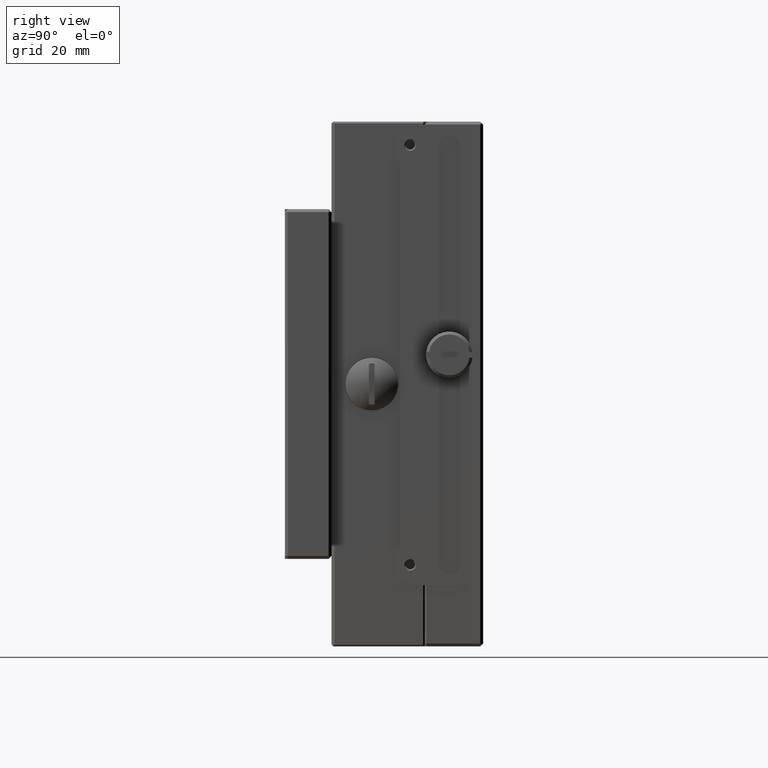
[diagram: clean part render]
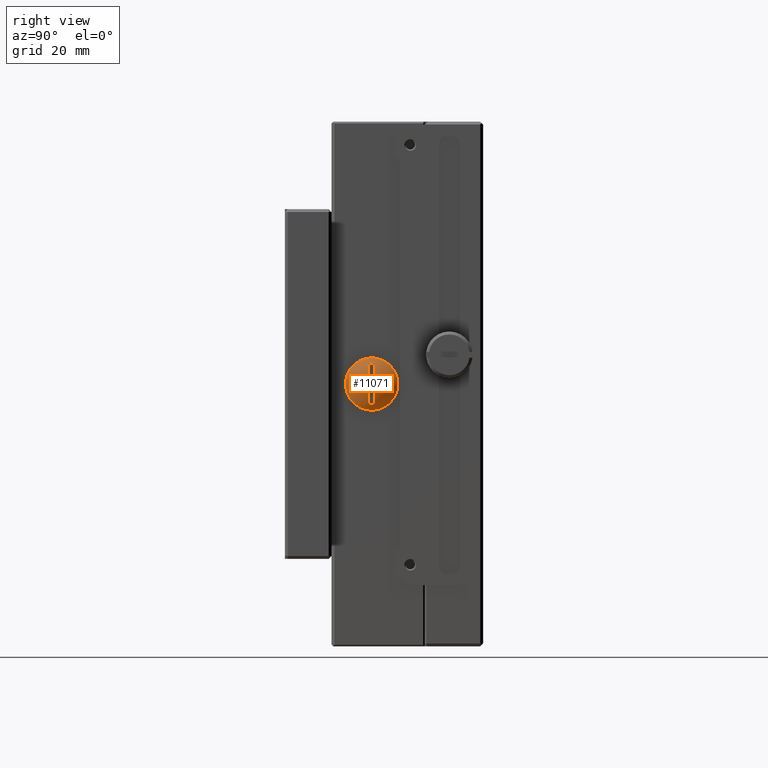
[diagram: same view with one face highlighted and labeled with its STEP entity id]
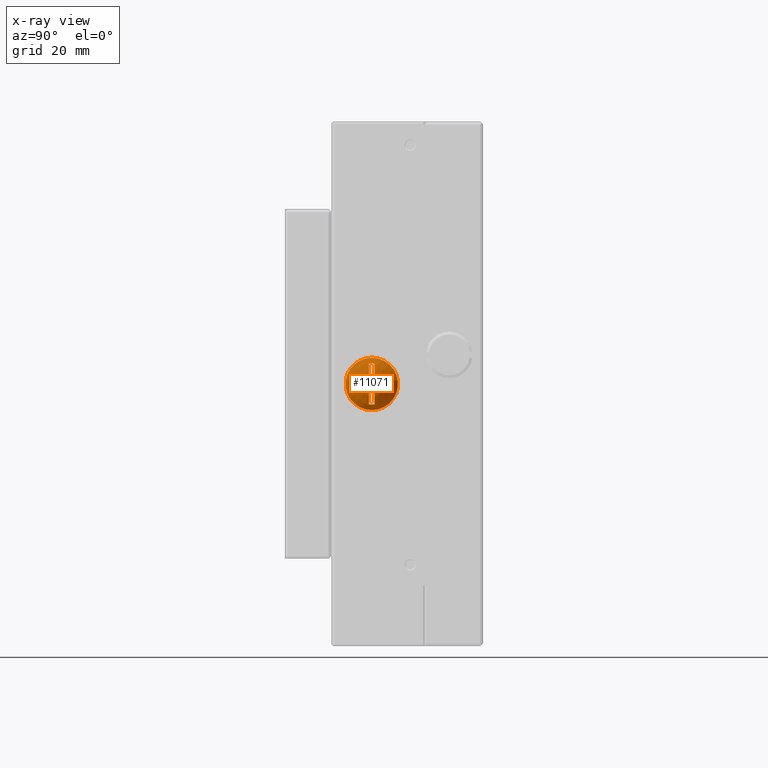
[diagram: x-ray of the same camera — body ghosted, the highlighted face saturated]
A machine part, right view. The second image highlights one B-rep face of the part: STEP entity #11071.
The next image is the same camera in x-ray: the body ghosted, the highlighted face saturated — about 0% of this face is hidden behind the body in this view.
In plain terms, the highlighted toroidal blend (fillet) surface has major radius 0.0001 mm and minor (blend) radius 6.8 mm.
Its self-contained STEP definition (entity closure, byte-faithful):
#29 = CARTESIAN_POINT ( 'NONE',  ( 22.33307815587641443, 7.400201897401417206, 1.387171018839665981 ) ) ;
#30 = CARTESIAN_POINT ( 'NONE',  ( 22.05300709519582725, 6.399658901637858222, -2.363864074223577916 ) ) ;
#95 = B_SPLINE_CURVE_WITH_KNOTS ( 'NONE', 3,
 ( #3745, #10223, #1261, #3820 ),
 .UNSPECIFIED., .F., .F.,
 ( 4, 4 ),
 ( 0.000000000000000000, 1.000000000000000000 ),
 .UNSPECIFIED. ) ;
#103 = CARTESIAN_POINT ( 'NONE',  ( 21.80567978435534471, 7.400100104684728564, 2.941696898522908388 ) ) ;
#104 = CARTESIAN_POINT ( 'NONE',  ( 22.22361885352713884, 6.399787343123959360, -1.834549694555051680 ) ) ;
#183 = CARTESIAN_POINT ( 'NONE',  ( 22.22639131674565860, 6.399788288457978425, -1.824657814371964282 ) ) ;
#334 = B_SPLINE_CURVE_WITH_KNOTS ( 'NONE', 3,
 ( #6442, #10302, #8732, #7673, #16201, #13979, #11357, #9052, #1420, #9976, #12596, #10221, #7751, #30, #15290, #11429, #1499, #13742, #4061, #1348, #104, #14968, #183, #14055, #5059, #3817, #6364, #15213, #3986, #8807, #8976, #2823, #6194, #2492, #7511, #14144, #12999, #6615, #1840, #6931, #1590, #4309, #6859, #15368, #4233, #4142, #5459, #10456, #9304, #11763, #10616, #603, #15610, #6689, #9229, #8081, #12925, #15463, #2999, #2920, #4386, #674, #7924, #14299, #14227, #13086, #1920, #6772, #11847, #3077, #7997, #5619, #9138, #1753, #11674, #9386, #525, #14378, #12840, #8172, #3162, #10374, #11917, #13165, #4475, #5551, #10546, #5700, #15536, #432, #1667, #11595, #10689, #15700, #9477, #14463, #7834, #351, #5380, #13406, #997, #3556, #8404, #3243, #11093, #4711, #13239, #4551, #9795, #13558, #12246, #4790, #9721, #2159, #9546, #14711, #5865, #7101 ),
 .UNSPECIFIED., .F., .F.,
 ( 4, 2, 2, 1, 1, 1, 2, 2, 2, 2, 1, 1, 1, 2, 2, 2, 1, 1, 1, 2, 2, 2, 2, 1, 1, 2, 2, 2, 2, 1, 1, 2, 2, 2, 2, 2, 2, 2, 2, 2, 2, 2, 1, 2, 2, 2, 2, 1, 1, 2, 2, 2, 2, 1, 1, 2, 2, 2, 1, 1, 1, 2, 2, 2, 2, 1, 1, 1, 2, 2, 4 ),
 ( 0.000000000000000000, 0.06250000000001250389, 0.09375000000001884604, 0.1093750000000219130, 0.1171875000000237727, 0.1210937500000250355, 0.1230468750000256600, 0.1250000000000262845, 0.1875000000000300315, 0.2187500000000319467, 0.2343750000000327238, 0.2421875000000329181, 0.2460937500000329459, 0.2480468750000330014, 0.2500000000000330291, 0.2812500000000340283, 0.2968750000000343059, 0.3046875000000344724, 0.3085937500000347500, 0.3105468750000349165, 0.3125000000000350830, 0.3437500000000369149, 0.3593750000000379696, 0.3671875000000384692, 0.3710937500000388578, 0.3730468750000389133, 0.3750000000000389688, 0.4062500000000401346, 0.4218750000000406897, 0.4296875000000410227, 0.4335937500000411893, 0.4355468750000412448, 0.4375000000000413003, 0.4531250000000420775, 0.4609375000000424660, 0.4687500000000428546, 0.5000000000000446310, 0.5156250000000456302, 0.5234375000000460743, 0.5312500000000465183, 0.5468750000000474065, 0.5546875000000479616, 0.5585937500000481837, 0.5605468750000481837, 0.5625000000000482947, 0.5937500000000499600, 0.6093750000000508482, 0.6171875000000512923, 0.6210937500000515143, 0.6230468750000516254, 0.6250000000000516254, 0.6562500000000506262, 0.6718750000000499600, 0.6796875000000495159, 0.6835937500000491829, 0.6855468750000489608, 0.6875000000000488498, 0.7187500000000452971, 0.7343750000000437428, 0.7421875000000429656, 0.7460937500000427436, 0.7480468750000426326, 0.7500000000000424105, 0.8125000000000305311, 0.8437500000000246470, 0.8593750000000217604, 0.8671875000000204281, 0.8710937500000197620, 0.8730468750000193179, 0.8750000000000189848, 1.000000000000000000 ),
 .UNSPECIFIED. ) ;
#350 = CARTESIAN_POINT ( 'NONE',  ( 22.29839197174012710, 7.400250990430073728, 1.544343358635752894 ) ) ;
#351 = CARTESIAN_POINT ( 'NONE',  ( 22.28004171971772607, 6.399933303560056963, 1.620863572671887853 ) ) ;
#430 = CARTESIAN_POINT ( 'NONE',  ( 22.26573108533036915, 7.400058212035997229, -1.678376559853743233 ) ) ;
#432 = CARTESIAN_POINT ( 'NONE',  ( 22.35696015044801754, 6.399935334334974080, 1.267724963724429887 ) ) ;
#523 = CARTESIAN_POINT ( 'NONE',  ( 22.46385299610491870, 7.400055806559308280, 0.4154189333448183308 ) ) ;
#525 = CARTESIAN_POINT ( 'NONE',  ( 22.45069806557370740, 6.399616592541454985, 0.5952566050842499346 ) ) ;
#602 = CARTESIAN_POINT ( 'NONE',  ( 22.47305622597992780, 7.399986879461205369, -0.2157641051931167009 ) ) ;
#603 = CARTESIAN_POINT ( 'NONE',  ( 22.46071989317424311, 6.399932672714440329, -0.4618345125646443061 ) ) ;
#673 = CARTESIAN_POINT ( 'NONE',  ( 22.46900122905168828, 7.400053668689976938, 0.3185824914298619470 ) ) ;
#674 = CARTESIAN_POINT ( 'NONE',  ( 22.47611711173144755, 6.400214583356109266, 0.07967442113901453127 ) ) ;
#757 = CARTESIAN_POINT ( 'NONE',  ( 22.47513456499765638, 7.399794651330410922, -0.1363633692464442382 ) ) ;
#841 = CARTESIAN_POINT ( 'NONE',  ( 22.23055982455986523, 7.400033428446132433, -1.809718132050493367 ) ) ;
#997 = CARTESIAN_POINT ( 'NONE',  ( 22.23764874318193208, 6.399964634231291249, 1.783964547303964920 ) ) ;
#1022 = CARTESIAN_POINT ( 'NONE',  ( 15.69486298685839820, 6.900000000000000355, 0.000000000000000000 ) ) ;
#1050 = EDGE_CURVE ( 'NONE', #1643, #1643, #12157, .T. ) ;
#1155 = CARTESIAN_POINT ( 'NONE',  ( 21.92316562531632229, 7.400027219231028575, -2.683066021481371966 ) ) ;
#1261 = CARTESIAN_POINT ( 'NONE',  ( 21.50000000000000000, 7.066666666666666430, -3.553416007881793792 ) ) ;
#1347 = CARTESIAN_POINT ( 'NONE',  ( 22.35452942779154384, 7.400190563735217886, 1.283317427923899690 ) ) ;
#1348 = CARTESIAN_POINT ( 'NONE',  ( 22.22041195733503827, 6.399785610483753828, -1.845949960777715670 ) ) ;
#1414 = CARTESIAN_POINT ( 'NONE',  ( 21.49999999999881339, 7.400000000000279243, 3.505876782460726204 ) ) ;
#1419 = CARTESIAN_POINT ( 'NONE',  ( 21.59005590640868277, 7.400000000000002132, 3.356754800198748168 ) ) ;
#1420 = CARTESIAN_POINT ( 'NONE',  ( 21.90907998793575118, 6.399894028482858488, -2.715536272180951727 ) ) ;
#1498 = CARTESIAN_POINT ( 'NONE',  ( 22.32418435405788060, 7.400213886072147140, 1.429247893669269631 ) ) ;
#1499 = CARTESIAN_POINT ( 'NONE',  ( 22.18219359586393935, 6.399716788250655597, -1.976341527254786623 ) ) ;
#1590 = CARTESIAN_POINT ( 'NONE',  ( 22.41327423976962052, 6.399853644269390962, -0.9236093840642969344 ) ) ;
#1643 = VERTEX_POINT ( 'NONE', #9024 ) ;
#1667 = CARTESIAN_POINT ( 'NONE',  ( 22.35101924098856330, 6.399958579010251114, 1.298714101278896749 ) ) ;
#1751 = CARTESIAN_POINT ( 'NONE',  ( 22.46131568764787190, 7.399981497221966187, -0.4531142984016563457 ) ) ;
#1753 = CARTESIAN_POINT ( 'NONE',  ( 22.46131568764743136, 6.400018502778003437, 0.4531142984082123792 ) ) ;
#1838 = CARTESIAN_POINT ( 'NONE',  ( 22.45997776766224518, 7.400079377860931729, 0.4725586109385250810 ) ) ;
#1840 = CARTESIAN_POINT ( 'NONE',  ( 22.41044942848894905, 6.399842507484700072, -0.9439802842628282065 ) ) ;
#1919 = CARTESIAN_POINT ( 'NONE',  ( 22.47119721844731544, 7.399979710184150683, -0.2696942824083002344 ) ) ;
#1920 = CARTESIAN_POINT ( 'NONE',  ( 22.47119721844703122, 6.400020289815594232, 0.2696942824147375295 ) ) ;
#1990 = CARTESIAN_POINT ( 'NONE',  ( 22.35101924099008741, 7.400041420990074670, -1.298714101270915133 ) ) ;
#2071 = CARTESIAN_POINT ( 'NONE',  ( 22.28004171971934610, 7.400066696439195013, -1.620863572665531160 ) ) ;
#2099 = CARTESIAN_POINT ( 'NONE',  ( 21.50000000000000000, 6.733333333333805903, 3.553416007885040084 ) ) ;
#2158 = CARTESIAN_POINT ( 'NONE',  ( 22.15365915865118396, 7.400212764690906830, -2.073094861533374633 ) ) ;
#2159 = CARTESIAN_POINT ( 'NONE',  ( 21.92602083048795691, 6.399972273652262622, 2.676430814329625818 ) ) ;
#2227 = CARTESIAN_POINT ( 'NONE',  ( 22.07844262235034094, 7.400212041077532277, -2.290436123057868478 ) ) ;
#2480 = CARTESIAN_POINT ( 'NONE',  ( 20.79299999999999926, 6.900000000000000355, 0.000000000000000000 ) ) ;
#2492 = CARTESIAN_POINT ( 'NONE',  ( 22.36959048988016008, 6.399692266090434067, -1.201630330378164802 ) ) ;
#2822 = CARTESIAN_POINT ( 'NONE',  ( 22.19689815927429066, 7.400249813502749241, 1.927596039222988278 ) ) ;
#2823 = CARTESIAN_POINT ( 'NONE',  ( 22.33538940281828289, 6.399800126515670762, -1.376068940143004404 ) ) ;
#2919 = CARTESIAN_POINT ( 'NONE',  ( 21.66895830916332955, 7.400062697171822634, 3.213151077073666873 ) ) ;
#2920 = CARTESIAN_POINT ( 'NONE',  ( 22.47650385125724881, 6.399985069869092769, -0.07363991872915982839 ) ) ;
#2998 = CARTESIAN_POINT ( 'NONE',  ( 22.40253109032956758, 7.400212329584194393, 0.9987685327265564128 ) ) ;
#2999 = CARTESIAN_POINT ( 'NONE',  ( 22.47536404913416774, 6.399990605568740776, -0.1461952928048929345 ) ) ;
#3075 = CARTESIAN_POINT ( 'NONE',  ( 22.40493093940801117, 7.399993538995934372, -0.9845863583042792078 ) ) ;
#3077 = CARTESIAN_POINT ( 'NONE',  ( 22.46567140508471283, 6.400003815096015458, 0.3830019123258130431 ) ) ;
#3160 = CARTESIAN_POINT ( 'NONE',  ( 22.42669046386621901, 7.400126552819478398, 0.8251713636609342428 ) ) ;
#3162 = CARTESIAN_POINT ( 'NONE',  ( 22.42388567277299671, 6.399908124517385666, 0.8433371499916140213 ) ) ;
#3242 = CARTESIAN_POINT ( 'NONE',  ( 22.42776004433091686, 7.400177555692986076, -0.8115226973235223351 ) ) ;
#3243 = CARTESIAN_POINT ( 'NONE',  ( 22.22872245867483088, 6.399966684253523219, 1.816337333965612366 ) ) ;
#3317 = CARTESIAN_POINT ( 'NONE',  ( 22.30687302080831103, 7.400061205889048033, -1.509133506881774389 ) ) ;
#3399 = CARTESIAN_POINT ( 'NONE',  ( 22.05097105190309748, 7.400178317723340449, -2.365857155101808385 ) ) ;
#3411 = AXIS2_PLACEMENT_3D ( 'NONE', #2480, #9124, #10363 ) ;
#3556 = CARTESIAN_POINT ( 'NONE',  ( 22.23340875666908900, 6.399965989242048181, 1.799396924812402210 ) ) ;
#3745 = CARTESIAN_POINT ( 'NONE',  ( 21.50000000000001066, 6.399999999999999467, -3.505876782458777541 ) ) ;
#3748 = ORIENTED_EDGE ( 'NONE', *, *, #10273, .T. ) ;
#3817 = CARTESIAN_POINT ( 'NONE',  ( 22.29839197174288046, 6.399749009571139347, -1.544343358624380880 ) ) ;
#3820 = CARTESIAN_POINT ( 'NONE',  ( 21.50000000000001066, 7.400000000000002132, -3.505876782458777541 ) ) ;
#3930 = AXIS2_PLACEMENT_3D ( 'NONE', #1022, #8337, #16051 ) ;
#3985 = CARTESIAN_POINT ( 'NONE',  ( 21.91406740747417814, 7.400107505540860053, 2.704074303502796095 ) ) ;
#3986 = CARTESIAN_POINT ( 'NONE',  ( 22.33045960076165670, 6.399795299232716950, -1.399682588933811589 ) ) ;
#4060 = CARTESIAN_POINT ( 'NONE',  ( 21.77325705932664945, 7.400096250942284293, 3.008252170204655851 ) ) ;
#4061 = CARTESIAN_POINT ( 'NONE',  ( 22.21277864620941500, 6.399777770074135397, -1.872814594082293782 ) ) ;
#4142 = CARTESIAN_POINT ( 'NONE',  ( 22.45074720686882230, 6.399571311069638391, -0.5907514110673763863 ) ) ;
#4232 = CARTESIAN_POINT ( 'NONE',  ( 22.45913210662582671, 7.400098468940016438, 0.4845966566432513556 ) ) ;
#4233 = CARTESIAN_POINT ( 'NONE',  ( 22.44747516287187850, 6.399481366960834805, -0.6271848023019253038 ) ) ;
#4308 = CARTESIAN_POINT ( 'NONE',  ( 22.47372133602500099, 7.399931464631435141, -0.1940121209580700778 ) ) ;
#4309 = CARTESIAN_POINT ( 'NONE',  ( 22.41360549685979464, 6.399854733714663624, -0.9212054400561768830 ) ) ;
#4385 = CARTESIAN_POINT ( 'NONE',  ( 22.47650385125716355, 7.400014930131226798, 0.07363991873309716496 ) ) ;
#4386 = CARTESIAN_POINT ( 'NONE',  ( 22.47644245060026691, 6.400007465065454149, 0.04235081003943125255 ) ) ;
#4465 = B_SPLINE_CURVE_WITH_KNOTS ( 'NONE', 3,
 ( #13903, #1419, #2919, #4060, #103, #10051, #7749, #12668, #15367, #3985, #9050, #5379, #7923, #12745, #14054, #11356, #14142, #2822, #6363, #12595, #6440, #10372, #8806, #12838, #11594, #350, #15126, #1498, #6518, #29, #5058, #13822, #1347, #5128, #10129, #6858, #2998, #15461, #14226, #13164, #5458, #7996, #3160, #10454, #13238, #10615, #8315, #14376, #4232, #1838, #4474, #7012, #523, #15785, #673, #11846, #15698, #15609, #12997, #4385, #13084, #9385, #757, #10545, #4308, #602, #1919, #5618, #11761, #15535, #9545, #14462, #13312, #1751, #6771, #8171, #9228, #5699, #5550, #3242, #11916, #11672, #9303, #8080, #14298, #3075, #9476, #6930, #10688, #8241, #1990, #11995, #5787, #10780, #4550, #14535, #3317, #2071, #430, #9720, #9953, #5935, #841, #9631, #14619, #2158, #2227, #3399, #10853, #8403, #8553, #5864, #13405, #13648, #1155, #16097, #8634, #13557 ),
 .UNSPECIFIED., .F., .F.,
 ( 4, 2, 2, 1, 1, 1, 2, 2, 2, 2, 1, 1, 1, 2, 2, 2, 1, 1, 1, 2, 2, 2, 2, 1, 1, 2, 2, 2, 2, 1, 1, 2, 2, 2, 2, 2, 2, 2, 2, 2, 2, 2, 1, 2, 2, 2, 2, 1, 1, 2, 2, 2, 2, 1, 1, 2, 2, 2, 1, 1, 1, 2, 2, 2, 2, 1, 1, 1, 2, 2, 4 ),
 ( 0.000000000000000000, 0.06250000000000717482, 0.09375000000001108835, 0.1093750000000130312, 0.1171875000000142247, 0.1210937500000150713, 0.1230468750000150713, 0.1250000000000150713, 0.1875000000000205114, 0.2187500000000230094, 0.2343750000000241474, 0.2421875000000245082, 0.2460937500000247302, 0.2480468750000250633, 0.2500000000000253686, 0.2812500000000322520, 0.2968750000000356382, 0.3046875000000373035, 0.3085937500000379696, 0.3105468750000383027, 0.3125000000000386358, 0.3437500000000408562, 0.3593750000000417999, 0.3671875000000422995, 0.3710937500000425215, 0.3730468750000425215, 0.3750000000000425215, 0.4062500000000435763, 0.4218750000000440203, 0.4296875000000441869, 0.4335937500000442979, 0.4355468750000443534, 0.4375000000000444089, 0.4531250000000449640, 0.4609375000000452416, 0.4687500000000455191, 0.5000000000000467404, 0.5156250000000472955, 0.5234375000000476286, 0.5312500000000479616, 0.5468750000000486278, 0.5546875000000490719, 0.5585937500000492939, 0.5605468750000494049, 0.5625000000000495159, 0.5937500000000514033, 0.6093750000000522915, 0.6171875000000528466, 0.6210937500000530687, 0.6230468750000531797, 0.6250000000000532907, 0.6562500000000555112, 0.6718750000000565104, 0.6796875000000569544, 0.6835937500000570655, 0.6855468750000571765, 0.6875000000000572875, 0.7187500000000589528, 0.7343750000000599520, 0.7421875000000602851, 0.7460937500000603961, 0.7480468750000602851, 0.7500000000000601741, 0.8125000000000448530, 0.8437500000000374145, 0.8593750000000334177, 0.8671875000000315303, 0.8710937500000308642, 0.8730468750000305311, 0.8750000000000301981, 1.000000000000000000 ),
 .UNSPECIFIED. ) ;
#4474 = CARTESIAN_POINT ( 'NONE',  ( 22.46053084675079603, 7.400070021017077337, 0.4645817380135854879 ) ) ;
#4475 = CARTESIAN_POINT ( 'NONE',  ( 22.41424430374753740, 6.400006962708862268, 0.9166079959731769922 ) ) ;
#4550 = CARTESIAN_POINT ( 'NONE',  ( 22.33678578485069011, 7.400015805169398497, -1.369374867906874904 ) ) ;
#4551 = CARTESIAN_POINT ( 'NONE',  ( 22.05097105190045781, 6.399821682278033386, 2.365857155109207799 ) ) ;
#4711 = CARTESIAN_POINT ( 'NONE',  ( 22.15365915864908430, 6.399787235310520295, 2.073094861540293543 ) ) ;
#4790 = CARTESIAN_POINT ( 'NONE',  ( 21.93713319461328126, 6.399968431512818690, 2.650444016507879752 ) ) ;
#5058 = CARTESIAN_POINT ( 'NONE',  ( 22.33480832271220251, 7.400200351237543828, 1.378865407429676004 ) ) ;
#5059 = CARTESIAN_POINT ( 'NONE',  ( 22.27146122319019383, 6.399746382389550625, -1.656626865490158140 ) ) ;
#5128 = CARTESIAN_POINT ( 'NONE',  ( 22.36959048987860044, 7.400307733908020325, 1.201630330387486234 ) ) ;
#5379 = CARTESIAN_POINT ( 'NONE',  ( 21.91840159086265771, 7.400108984438083404, 2.694086179322809471 ) ) ;
#5380 = CARTESIAN_POINT ( 'NONE',  ( 22.26573108532862122, 6.399941787963290274, 1.678376559860375927 ) ) ;
#5446 = VERTEX_POINT ( 'NONE', #1414 ) ;
#5458 = CARTESIAN_POINT ( 'NONE',  ( 22.41327423976896327, 7.400146355730584879, 0.9236093840690586809 ) ) ;
#5459 = CARTESIAN_POINT ( 'NONE',  ( 22.45504659455030705, 6.399738813320205999, -0.5386313367750942271 ) ) ;
#5550 = CARTESIAN_POINT ( 'NONE',  ( 22.43506409403621404, 7.400331199309236219, -0.7492047715794465379 ) ) ;
#5551 = CARTESIAN_POINT ( 'NONE',  ( 22.40493093940689917, 6.400006461004309699, 0.9845863583119413009 ) ) ;
#5618 = CARTESIAN_POINT ( 'NONE',  ( 22.46964729193208754, 7.399990616491828099, -0.3064213664934914982 ) ) ;
#5619 = CARTESIAN_POINT ( 'NONE',  ( 22.46298104120333861, 6.400013048280214001, 0.4276880077806368141 ) ) ;
#5699 = CARTESIAN_POINT ( 'NONE',  ( 22.43934139492685986, 7.400403002052675205, -0.7094103926659384163 ) ) ;
#5700 = CARTESIAN_POINT ( 'NONE',  ( 22.37530446666909612, 6.399873624394321503, 1.167614707349957648 ) ) ;
#5787 = CARTESIAN_POINT ( 'NONE',  ( 22.34037044185066634, 7.400018187546902659, -1.351873991588219859 ) ) ;
#5864 = CARTESIAN_POINT ( 'NONE',  ( 21.93713319461706135, 7.400031568487408506, -2.650444016498925137 ) ) ;
#5865 = CARTESIAN_POINT ( 'NONE',  ( 21.68070497124608664, 6.400000000000000355, 3.206650617391137104 ) ) ;
#5935 = CARTESIAN_POINT ( 'NONE',  ( 22.23340875667128813, 7.400034010757813974, -1.799396924804424147 ) ) ;
#6194 = CARTESIAN_POINT ( 'NONE',  ( 22.35452942779289742, 6.399809436263327100, -1.283317427916502274 ) ) ;
#6363 = CARTESIAN_POINT ( 'NONE',  ( 22.21277864620839892, 7.400222229925607742, 1.872814594085894901 ) ) ;
#6364 = CARTESIAN_POINT ( 'NONE',  ( 22.31095526083266734, 6.399762453114602678, -1.489861288280314833 ) ) ;
#6440 = CARTESIAN_POINT ( 'NONE',  ( 22.22361885352629329, 7.400212656875967632, 1.834549694558107014 ) ) ;
#6442 = CARTESIAN_POINT ( 'NONE',  ( 21.50000000000001066, 6.399999999999999467, -3.505876782458777541 ) ) ;
#6518 = CARTESIAN_POINT ( 'NONE',  ( 22.33045960076042036, 7.400204700767715416, 1.399682588939544114 ) ) ;
#6615 = CARTESIAN_POINT ( 'NONE',  ( 22.40632725247949963, 6.399816948707806041, -0.9730404292397010213 ) ) ;
#6689 = CARTESIAN_POINT ( 'NONE',  ( 22.46614475633634456, 6.399934336823534409, -0.3758706732761322722 ) ) ;
#6771 = CARTESIAN_POINT ( 'NONE',  ( 22.46088649285688277, 7.399980627452522164, -0.4594690547677530157 ) ) ;
#6772 = CARTESIAN_POINT ( 'NONE',  ( 22.46964729193175714, 6.400009383507842209, 0.3064213665001676024 ) ) ;
#6858 = CARTESIAN_POINT ( 'NONE',  ( 22.39456289780375542, 7.400266332113261569, 1.051317828983972857 ) ) ;
#6859 = CARTESIAN_POINT ( 'NONE',  ( 22.42669046386695086, 6.399873447180845609, -0.8251713636552506781 ) ) ;
#6930 = CARTESIAN_POINT ( 'NONE',  ( 22.37530446667048878, 7.400126375606219220, -1.167614707341809943 ) ) ;
#6931 = CARTESIAN_POINT ( 'NONE',  ( 22.41215262585094337, 6.399849805082586052, -0.9317304941237603000 ) ) ;
#7012 = CARTESIAN_POINT ( 'NONE',  ( 22.46071989317389495, 7.400067327285624330, 0.4618345125696525777 ) ) ;
#7101 = CARTESIAN_POINT ( 'NONE',  ( 21.49999999999521805, 6.400000000000000355, 3.505876782468718478 ) ) ;
#7281 = ORIENTED_EDGE ( 'NONE', *, *, #7974, .F. ) ;
#7375 = CARTESIAN_POINT ( 'NONE',  ( 21.50000000000001066, 6.399999999999999467, -3.505876782458777541 ) ) ;
#7511 = CARTESIAN_POINT ( 'NONE',  ( 22.38875004423369219, 6.399705667072663751, -1.087808908984825962 ) ) ;
#7673 = CARTESIAN_POINT ( 'NONE',  ( 21.77325705933536781, 6.399903749058513114, -3.008252170187169394 ) ) ;
#7749 = CARTESIAN_POINT ( 'NONE',  ( 21.87303913395830079, 7.400100924209381148, 2.796914231280393626 ) ) ;
#7751 = CARTESIAN_POINT ( 'NONE',  ( 21.99307182269310701, 6.399860751102043110, -2.521180790304816011 ) ) ;
#7834 = CARTESIAN_POINT ( 'NONE',  ( 22.30687302080684375, 6.399938794110311413, 1.509133506887993637 ) ) ;
#7923 = CARTESIAN_POINT ( 'NONE',  ( 21.99307182269165750, 7.400139248896681288, 2.521180790308518382 ) ) ;
#7924 = CARTESIAN_POINT ( 'NONE',  ( 22.47513456499751427, 6.400205348669729233, 0.1363633692538543662 ) ) ;
#7974 = EDGE_CURVE ( 'NONE', #8646, #12660, #95, .T. ) ;
#7996 = CARTESIAN_POINT ( 'NONE',  ( 22.41360549685921555, 7.400145266285321988, 0.9212054400604346993 ) ) ;
#7997 = CARTESIAN_POINT ( 'NONE',  ( 22.46390537871043591, 6.400009313799344568, 0.4126946972168228922 ) ) ;
#8080 = CARTESIAN_POINT ( 'NONE',  ( 22.41522727374390911, 7.399995232268343770, -0.9093795018353630910 ) ) ;
#8081 = CARTESIAN_POINT ( 'NONE',  ( 22.46985609373460946, 6.399952239299159018, -0.2998215804425497510 ) ) ;
#8171 = CARTESIAN_POINT ( 'NONE',  ( 22.45631620461891842, 7.399975709406396263, -0.5262132824025900213 ) ) ;
#8172 = CARTESIAN_POINT ( 'NONE',  ( 22.42776004433017789, 6.399822444306805025, 0.8115226973294805690 ) ) ;
#8241 = CARTESIAN_POINT ( 'NONE',  ( 22.35696015044950968, 7.400064665665432528, -1.267724963716379660 ) ) ;
#8315 = CARTESIAN_POINT ( 'NONE',  ( 22.45504659454978480, 7.400261186680459957, 0.5386313367810625641 ) ) ;
#8337 = DIRECTION ( 'NONE',  ( 1.000000000000000000, 0.000000000000000000, 0.000000000000000000 ) ) ;
#8339 = CARTESIAN_POINT ( 'NONE',  ( 21.49999999999881339, 7.400000000000279243, 3.505876782460726204 ) ) ;
#8403 = CARTESIAN_POINT ( 'NONE',  ( 21.98196129162005619, 7.400072888514755753, -2.542884582046356368 ) ) ;
#8404 = CARTESIAN_POINT ( 'NONE',  ( 22.23055982455760926, 6.399966571553799000, 1.809718132058613316 ) ) ;
#8553 = CARTESIAN_POINT ( 'NONE',  ( 21.95240565972009961, 7.400041322837124014, -2.614303684858963805 ) ) ;
#8634 = CARTESIAN_POINT ( 'NONE',  ( 21.68070497126191398, 7.400000000000004796, -3.206650617363775435 ) ) ;
#8646 = VERTEX_POINT ( 'NONE', #7375 ) ;
#8670 = ORIENTED_EDGE ( 'NONE', *, *, #1050, .F. ) ;
#8732 = CARTESIAN_POINT ( 'NONE',  ( 21.66895830917245647, 6.399937302828624830, -3.213151077056772387 ) ) ;
#8806 = CARTESIAN_POINT ( 'NONE',  ( 22.22639131674498003, 7.400211711541999193, 1.824657814374439413 ) ) ;
#8807 = CARTESIAN_POINT ( 'NONE',  ( 22.33307815587744471, 6.399798102598843741, -1.387171018834824077 ) ) ;
#8976 = CARTESIAN_POINT ( 'NONE',  ( 22.33480832271309069, 6.399799648762591886, -1.378865407425447387 ) ) ;
#9024 = CARTESIAN_POINT ( 'NONE',  ( 20.79299999999999926, 6.900000000000000355, -4.500000000000000888 ) ) ;
#9050 = CARTESIAN_POINT ( 'NONE',  ( 21.91737720418880286, 7.400108626916070520, 2.696448681113508439 ) ) ;
#9052 = CARTESIAN_POINT ( 'NONE',  ( 21.89728257945677115, 6.399896679157581758, -2.742445014706869966 ) ) ;
#9124 = DIRECTION ( 'NONE',  ( -1.000000000000000000, -0.000000000000000000, -0.000000000000000000 ) ) ;
#9138 = CARTESIAN_POINT ( 'NONE',  ( 22.46199087688972185, 6.400016559801331439, 0.4429123867634205958 ) ) ;
#9228 = CARTESIAN_POINT ( 'NONE',  ( 22.45069806557416570, 7.400383407458609675, -0.5952566050790242258 ) ) ;
#9229 = CARTESIAN_POINT ( 'NONE',  ( 22.46900122905194763, 6.399946331309527281, -0.3185824914237422867 ) ) ;
#9303 = CARTESIAN_POINT ( 'NONE',  ( 22.41672541092073700, 7.400003290161310865, -0.8982330166113222658 ) ) ;
#9304 = CARTESIAN_POINT ( 'NONE',  ( 22.45913210662623882, 6.399901531060287141, -0.4845966566378117069 ) ) ;
#9335 = B_SPLINE_CURVE_WITH_KNOTS ( 'NONE', 3,
 ( #8339, #13340, #2099, #12109 ),
 .UNSPECIFIED., .F., .F.,
 ( 4, 4 ),
 ( 0.000000000000000000, 1.000000000000000000 ),
 .UNSPECIFIED. ) ;
#9385 = CARTESIAN_POINT ( 'NONE',  ( 22.47611711173152571, 7.399785416643869240, -0.07967442113173031637 ) ) ;
#9386 = CARTESIAN_POINT ( 'NONE',  ( 22.45631620461847788, 6.400024290593814946, 0.5262132824082541571 ) ) ;
#9476 = CARTESIAN_POINT ( 'NONE',  ( 22.39444282389906959, 7.400118227619310041, -1.054341783313844649 ) ) ;
#9477 = CARTESIAN_POINT ( 'NONE',  ( 22.33678578484909139, 6.399984194830630635, 1.369374867914660454 ) ) ;
#9545 = CARTESIAN_POINT ( 'NONE',  ( 22.46390537871086579, 7.399990686200501600, -0.4126946972100810074 ) ) ;
#9546 = CARTESIAN_POINT ( 'NONE',  ( 21.92316562531247826, 6.399972780769000558, 2.683066021490295494 ) ) ;
#9631 = CARTESIAN_POINT ( 'NONE',  ( 22.22872245867714369, 7.400033315746458840, -1.816337333957312561 ) ) ;
#9687 = EDGE_LOOP ( 'NONE', ( #8670 ) ) ;
#9720 = CARTESIAN_POINT ( 'NONE',  ( 22.24731081901246554, 7.400041171632302905, -1.748302814537771255 ) ) ;
#9721 = CARTESIAN_POINT ( 'NONE',  ( 21.93048023395152057, 6.399970978601158933, 2.666023997143920354 ) ) ;
#9795 = CARTESIAN_POINT ( 'NONE',  ( 22.00565044891781241, 6.399889741069644700, 2.483177875341882945 ) ) ;
#9953 = CARTESIAN_POINT ( 'NONE',  ( 22.23764874318406015, 7.400035365768460771, -1.783964547296191361 ) ) ;
#9976 = CARTESIAN_POINT ( 'NONE',  ( 21.91406740747536475, 6.399892494459254344, -2.704074303500087151 ) ) ;
#10051 = CARTESIAN_POINT ( 'NONE',  ( 21.85111867570460120, 7.400101241937902863, 2.844702421489227806 ) ) ;
#10129 = CARTESIAN_POINT ( 'NONE',  ( 22.38875004423224624, 7.400294332926249830, 1.087808908994281731 ) ) ;
#10221 = CARTESIAN_POINT ( 'NONE',  ( 21.91840159086320838, 6.399891015561958163, -2.694086179321540708 ) ) ;
#10223 = CARTESIAN_POINT ( 'NONE',  ( 21.50000000000000000, 6.733333333333332504, -3.553416007881793792 ) ) ;
#10273 = EDGE_CURVE ( 'NONE', #8646, #14271, #334, .T. ) ;
#10302 = CARTESIAN_POINT ( 'NONE',  ( 21.59005590641526595, 6.399999999999997691, -3.356754800187846222 ) ) ;
#10363 = DIRECTION ( 'NONE',  ( 0.000000000000000000, 0.000000000000000000, -1.000000000000000000 ) ) ;
#10372 = CARTESIAN_POINT ( 'NONE',  ( 22.22574258315367146, 7.400211904819482989, 1.826974705330379756 ) ) ;
#10374 = CARTESIAN_POINT ( 'NONE',  ( 22.41894017124960925, 6.399979142275140198, 0.8815940999212827922 ) ) ;
#10454 = CARTESIAN_POINT ( 'NONE',  ( 22.43617958424550451, 7.400549574290945287, 0.7417474659101712664 ) ) ;
#10456 = CARTESIAN_POINT ( 'NONE',  ( 22.45704378652031608, 6.399828320256754743, -0.5132021948673750611 ) ) ;
#10545 = CARTESIAN_POINT ( 'NONE',  ( 22.47472389889487587, 7.399834780369900500, -0.1553738730447731531 ) ) ;
#10546 = CARTESIAN_POINT ( 'NONE',  ( 22.39444282389785101, 6.399881772381148970, 1.054341783321838699 ) ) ;
#10615 = CARTESIAN_POINT ( 'NONE',  ( 22.45074720686822189, 7.400428688931205201, 0.5907514110736904467 ) ) ;
#10616 = CARTESIAN_POINT ( 'NONE',  ( 22.46053084675115841, 6.399929978983021073, -0.4645817380083945847 ) ) ;
#10626 = CARTESIAN_POINT ( 'NONE',  ( 21.50000000000001066, 7.400000000000002132, -3.505876782458777541 ) ) ;
#10688 = CARTESIAN_POINT ( 'NONE',  ( 22.36835559235029081, 7.400106535380352568, -1.206808770120333163 ) ) ;
#10689 = CARTESIAN_POINT ( 'NONE',  ( 22.34037044184907828, 6.399981812453212626, 1.351873991596026281 ) ) ;
#10780 = CARTESIAN_POINT ( 'NONE',  ( 22.33817137211996950, 7.400016236824117577, -1.362641009175387774 ) ) ;
#10853 = CARTESIAN_POINT ( 'NONE',  ( 22.00565044892084643, 7.400110258931376528, -2.483177875333947515 ) ) ;
#11071 = ADVANCED_FACE ( 'NONE', ( #12267, #12357 ), #13102, .T. ) ;
#11093 = CARTESIAN_POINT ( 'NONE',  ( 22.19423400248170353, 6.399965109478425340, 1.940133042103364236 ) ) ;
#11356 = CARTESIAN_POINT ( 'NONE',  ( 22.15121501635390899, 7.400342162983655214, 2.076176175178183314 ) ) ;
#11357 = CARTESIAN_POINT ( 'NONE',  ( 21.87303913396277011, 6.399899075791237735, -2.796914231270593021 ) ) ;
#11429 = CARTESIAN_POINT ( 'NONE',  ( 22.15121501635552903, 6.399657837015245931, -2.076176175172880889 ) ) ;
#11594 = CARTESIAN_POINT ( 'NONE',  ( 22.27146122318730903, 7.400253617611411094, 1.656626865501358292 ) ) ;
#11595 = CARTESIAN_POINT ( 'NONE',  ( 22.34363516326299504, 6.399977363411109010, 1.335788683297677304 ) ) ;
#11672 = CARTESIAN_POINT ( 'NONE',  ( 22.41894017125049388, 7.400020857724748602, -0.8815940999146318902 ) ) ;
#11674 = CARTESIAN_POINT ( 'NONE',  ( 22.46088649285643513, 6.400019372547471441, 0.4594690547742902864 ) ) ;
#11761 = CARTESIAN_POINT ( 'NONE',  ( 22.46673866405563302, 7.399996839604546572, -0.3635995598150091324 ) ) ;
#11763 = CARTESIAN_POINT ( 'NONE',  ( 22.45997776766263243, 6.399920622139251059, -0.4725586109332340912 ) ) ;
#11846 = CARTESIAN_POINT ( 'NONE',  ( 22.46985609373436432, 7.400047760700418920, 0.2998215804486254465 ) ) ;
#11847 = CARTESIAN_POINT ( 'NONE',  ( 22.46673866405524933, 6.400003160395177026, 0.3635995598218124680 ) ) ;
#11916 = CARTESIAN_POINT ( 'NONE',  ( 22.42388567277379607, 7.400091875482427639, -0.8433371499853802300 ) ) ;
#11917 = CARTESIAN_POINT ( 'NONE',  ( 22.41672541091980619, 6.399996709838620568, 0.8982330166181693443 ) ) ;
#11995 = CARTESIAN_POINT ( 'NONE',  ( 22.34363516326455112, 7.400022636589073777, -1.335788683289814482 ) ) ;
#12109 = CARTESIAN_POINT ( 'NONE',  ( 21.49999999999521805, 6.400000000000000355, 3.505876782468718478 ) ) ;
#12157 = CIRCLE ( 'NONE', #3411, 4.500000000000000888 ) ;
#12246 = CARTESIAN_POINT ( 'NONE',  ( 21.95240565971649360, 6.399958677163305687, 2.614303684867675504 ) ) ;
#12267 = FACE_OUTER_BOUND ( 'NONE', #15103, .T. ) ;
#12357 = FACE_OUTER_BOUND ( 'NONE', #9687, .T. ) ;
#12595 = CARTESIAN_POINT ( 'NONE',  ( 22.22041195733413943, 7.400214389516112767, 1.845949960780943311 ) ) ;
#12596 = CARTESIAN_POINT ( 'NONE',  ( 21.91737720418969104, 6.399891373083987922, -2.696448681111473178 ) ) ;
#12660 = VERTEX_POINT ( 'NONE', #10626 ) ;
#12668 = CARTESIAN_POINT ( 'NONE',  ( 21.89728257945413858, 7.400103320842775112, 2.742445014712763918 ) ) ;
#12745 = CARTESIAN_POINT ( 'NONE',  ( 22.05300709519407576, 7.400341098360587289, 2.363864074228631651 ) ) ;
#12838 = CARTESIAN_POINT ( 'NONE',  ( 22.25110528239495267, 7.400212846993007076, 1.735912815656082353 ) ) ;
#12840 = CARTESIAN_POINT ( 'NONE',  ( 22.43506409403559587, 6.399668800690566428, 0.7492047715849531331 ) ) ;
#12925 = CARTESIAN_POINT ( 'NONE',  ( 22.47139248831155101, 6.399962775426927486, -0.2628288308569793341 ) ) ;
#12997 = CARTESIAN_POINT ( 'NONE',  ( 22.47536404913401498, 7.400009394431780407, 0.1461952928100754556 ) ) ;
#12999 = CARTESIAN_POINT ( 'NONE',  ( 22.40253109033069023, 6.399787670415341800, -0.9987685327187901807 ) ) ;
#13084 = CARTESIAN_POINT ( 'NONE',  ( 22.47644245060031665, 7.399992534934394683, -0.04235081003269261513 ) ) ;
#13086 = CARTESIAN_POINT ( 'NONE',  ( 22.47305622597975017, 6.400013120538930345, 0.2157641051991255887 ) ) ;
#13102 = TOROIDAL_SURFACE ( 'NONE', #3930, 0.0001112241260672190056, 6.800000000000060218 ) ;
#13164 = CARTESIAN_POINT ( 'NONE',  ( 22.41215262585022572, 7.400150194917351598, 0.9317304941289223930 ) ) ;
#13165 = CARTESIAN_POINT ( 'NONE',  ( 22.41522727374295343, 6.400004767731624966, 0.9093795018423463938 ) ) ;
#13238 = CARTESIAN_POINT ( 'NONE',  ( 22.44747516287122480, 7.400518633040019445, 0.6271848023083539392 ) ) ;
#13239 = CARTESIAN_POINT ( 'NONE',  ( 22.07844262234787891, 6.399787958923943698, 2.290436123065042739 ) ) ;
#13312 = CARTESIAN_POINT ( 'NONE',  ( 22.46199087689016594, 7.399983440198608875, -0.4429123867568057760 ) ) ;
#13340 = CARTESIAN_POINT ( 'NONE',  ( 21.50000000000000000, 7.066666666667139829, 3.553416007881726735 ) ) ;
#13405 = CARTESIAN_POINT ( 'NONE',  ( 21.93048023395539303, 7.400029021398977669, -2.666023997134851165 ) ) ;
#13406 = CARTESIAN_POINT ( 'NONE',  ( 22.24731081901047602, 6.399958828367252828, 1.748302814545099615 ) ) ;
#13557 = CARTESIAN_POINT ( 'NONE',  ( 21.50000000000001066, 7.400000000000002132, -3.505876782458777541 ) ) ;
#13558 = CARTESIAN_POINT ( 'NONE',  ( 21.98196129161679124, 6.399927111486040765, 2.542884582054609321 ) ) ;
#13648 = CARTESIAN_POINT ( 'NONE',  ( 21.92602083049187911, 7.400027726347808255, -2.676430814320480689 ) ) ;
#13702 = ORIENTED_EDGE ( 'NONE', *, *, #15451, .F. ) ;
#13742 = CARTESIAN_POINT ( 'NONE',  ( 22.19689815927551635, 6.399750186496734550, -1.927596039218722135 ) ) ;
#13822 = CARTESIAN_POINT ( 'NONE',  ( 22.33538940281758656, 7.400199873484420543, 1.376068940146347952 ) ) ;
#13903 = CARTESIAN_POINT ( 'NONE',  ( 21.49999999999881339, 7.400000000000279243, 3.505876782460726204 ) ) ;
#13979 = CARTESIAN_POINT ( 'NONE',  ( 21.85111867571035305, 6.399898758062832371, -2.844702421476904330 ) ) ;
#14054 = CARTESIAN_POINT ( 'NONE',  ( 22.12847164973540615, 7.400368204737360678, 2.145859913441273470 ) ) ;
#14055 = CARTESIAN_POINT ( 'NONE',  ( 22.25110528239726904, 6.399787153007410190, -1.735912815647716823 ) ) ;
#14142 = CARTESIAN_POINT ( 'NONE',  ( 22.18219359586256090, 7.400283211748621248, 1.976341527259465103 ) ) ;
#14144 = CARTESIAN_POINT ( 'NONE',  ( 22.39456289780510190, 6.399733667885908694, -1.051317828974929425 ) ) ;
#14226 = CARTESIAN_POINT ( 'NONE',  ( 22.41044942848814259, 7.400157492515182511, 0.9439802842685744988 ) ) ;
#14227 = CARTESIAN_POINT ( 'NONE',  ( 22.47372133602481270, 6.400068535368764522, 0.1940121209650063905 ) ) ;
#14237 = EDGE_CURVE ( 'NONE', #5446, #12660, #4465, .T. ) ;
#14271 = VERTEX_POINT ( 'NONE', #14949 ) ;
#14298 = CARTESIAN_POINT ( 'NONE',  ( 22.41424430374849663, 7.399993037291129561, -0.9166079959660849985 ) ) ;
#14299 = CARTESIAN_POINT ( 'NONE',  ( 22.47472389889471600, 6.400165219630292945, 0.1553738730521087297 ) ) ;
#14376 = CARTESIAN_POINT ( 'NONE',  ( 22.45704378651984356, 7.400171679743782427, 0.5132021948731260164 ) ) ;
#14378 = CARTESIAN_POINT ( 'NONE',  ( 22.43934139492629143, 6.399596997947188726, 0.7094103926712782560 ) ) ;
#14391 = ORIENTED_EDGE ( 'NONE', *, *, #14237, .T. ) ;
#14462 = CARTESIAN_POINT ( 'NONE',  ( 22.46298104120376493, 7.399986951719676576, -0.4276880077739441677 ) ) ;
#14463 = CARTESIAN_POINT ( 'NONE',  ( 22.32237766050468153, 6.399982238063365969, 1.439046225606807949 ) ) ;
#14535 = CARTESIAN_POINT ( 'NONE',  ( 22.32237766050617722, 7.400017761936303451, -1.439046225600113971 ) ) ;
#14619 = CARTESIAN_POINT ( 'NONE',  ( 22.19423400248382805, 7.400034890522498188, -1.940133042096054750 ) ) ;
#14711 = CARTESIAN_POINT ( 'NONE',  ( 21.81653744662622429, 6.399983381615998113, 2.930182745225175633 ) ) ;
#14949 = CARTESIAN_POINT ( 'NONE',  ( 21.49999999999521805, 6.400000000000000355, 3.505876782468718478 ) ) ;
#14968 = CARTESIAN_POINT ( 'NONE',  ( 22.22574258315446372, 6.399788095180485747, -1.826974705327439663 ) ) ;
#15103 = EDGE_LOOP ( 'NONE', ( #7281, #3748, #13702, #14391 ) ) ;
#15126 = CARTESIAN_POINT ( 'NONE',  ( 22.31095526083023373, 7.400237546886600626, 1.489861288290756480 ) ) ;
#15213 = CARTESIAN_POINT ( 'NONE',  ( 22.32418435405957879, 6.399786113928621845, -1.429247893661678592 ) ) ;
#15290 = CARTESIAN_POINT ( 'NONE',  ( 22.12847164973711855, 6.399631795261341516, -2.145859913435828936 ) ) ;
#15367 = CARTESIAN_POINT ( 'NONE',  ( 21.90907998793411338, 7.400105971517328740, 2.715536272184650546 ) ) ;
#15368 = CARTESIAN_POINT ( 'NONE',  ( 22.43617958424624703, 6.399450425709745538, -0.7417474659038353346 ) ) ;
#15451 = EDGE_CURVE ( 'NONE', #5446, #14271, #9335, .T. ) ;
#15461 = CARTESIAN_POINT ( 'NONE',  ( 22.40632725247851553, 7.400183051291907788, 0.9730404292466632299 ) ) ;
#15463 = CARTESIAN_POINT ( 'NONE',  ( 22.47200620076734978, 6.399966398313685190, -0.2466254262336662895 ) ) ;
#15535 = CARTESIAN_POINT ( 'NONE',  ( 22.46567140508510363, 7.399996184903747221, -0.3830019123190065988 ) ) ;
#15536 = CARTESIAN_POINT ( 'NONE',  ( 22.36835559234884485, 6.399893464620170391, 1.206808770128475317 ) ) ;
#15609 = CARTESIAN_POINT ( 'NONE',  ( 22.47200620076714372, 7.400033601686192064, 0.2466254262391815166 ) ) ;
#15610 = CARTESIAN_POINT ( 'NONE',  ( 22.46385299610524910, 6.399944193440200380, -0.4154189333391062888 ) ) ;
#15698 = CARTESIAN_POINT ( 'NONE',  ( 22.47139248831132718, 7.400037224572845851, 0.2628288308628378700 ) ) ;
#15700 = CARTESIAN_POINT ( 'NONE',  ( 22.33817137211839920, 6.399983763175942642, 1.362641009183154228 ) ) ;
#15785 = CARTESIAN_POINT ( 'NONE',  ( 22.46614475633604968, 7.400065663175871222, 0.3758706732821741614 ) ) ;
#16051 = DIRECTION ( 'NONE',  ( 0.000000000000000000, 0.000000000000000000, -1.000000000000000000 ) ) ;
#16097 = CARTESIAN_POINT ( 'NONE',  ( 21.81653744663895367, 7.400016618382474931, -2.930182745196936001 ) ) ;
#16201 = CARTESIAN_POINT ( 'NONE',  ( 21.80567978436322107, 6.399899895316129239, -2.941696898506619196 ) ) ;